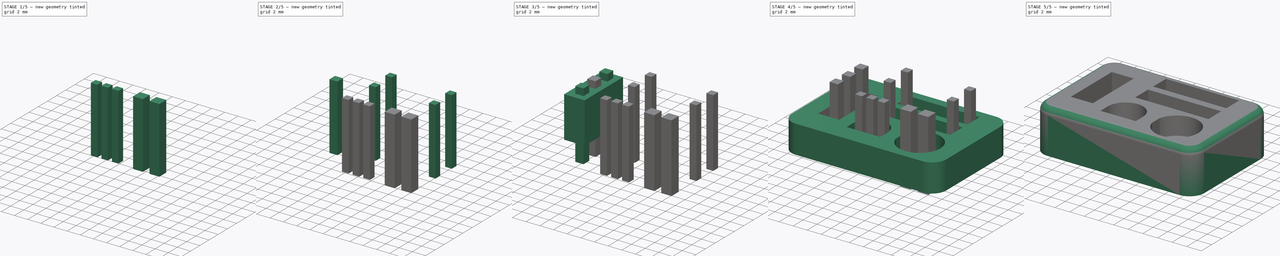
[diagram: build sequence overview — one tinted view per stage of 5, left to right]
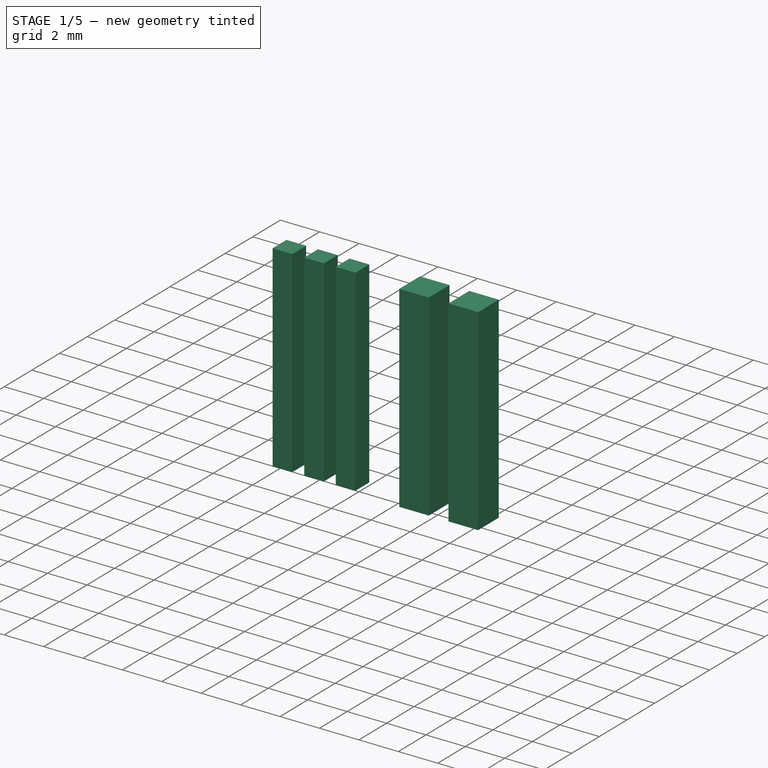
[diagram: stage 1 of 5 — iso view after this stage's code; geometry added in this stage tinted green]
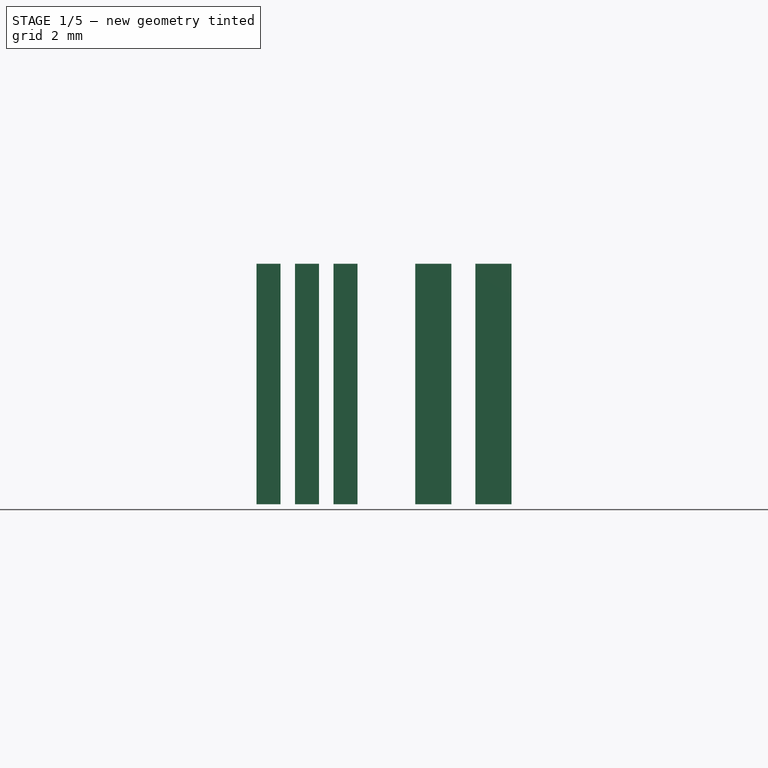
[diagram: stage 1 of 5 — front view after this stage's code; geometry added in this stage tinted green]
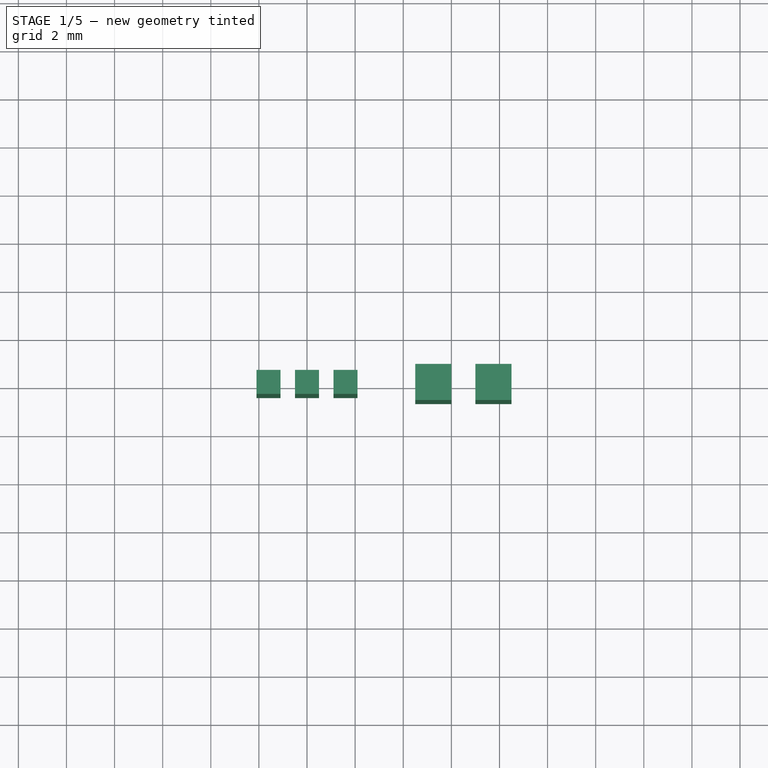
[diagram: stage 1 of 5 — top view after this stage's code; geometry added in this stage tinted green]
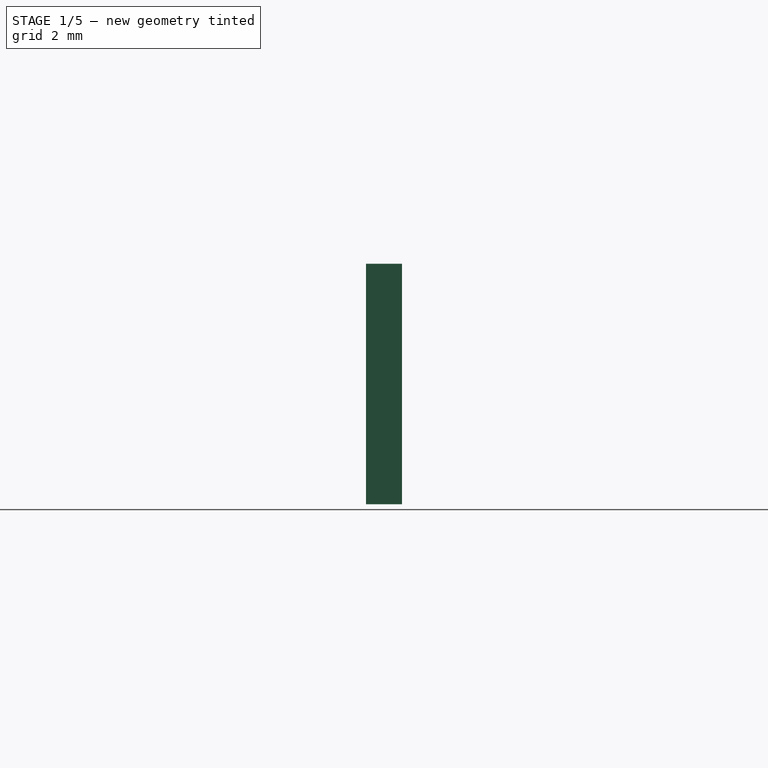
[diagram: stage 1 of 5 — right view after this stage's code; geometry added in this stage tinted green]
FCSTD DOCUMENT  (FreeCAD 0.18R16131 (Git))
Label: PCBPrint_Led_5mm_Transistor_EBC
License: Public Domain
LicenseURL: http://en.wikipedia.org/wiki/Public_domain
objects: Part::Feature×21, Part::Box×13, App::DocumentObjectGroup×7, Sketcher::SketchObject×5, PartDesign::Pad×3, PartDesign::Body×3, Part::Cut×3, App::Part×3, PartDesign::Pocket×2, Part::MultiFuse×2, Part::Fillet×1
note: 58 computed .brp shape members not serialized (recipe doc carries the construction recipe); baked Part::Feature solids carry a one-line shape summary decoded from their .brp

FEATURE [Part::Box] Box013  label="Cubo013"
  AttacherType = Attacher::AttachEngine3D
  Height = 10
  Length = 1.5
  Placement = pos=(14.5,3.35,0) rot=(0,0,1;0rad)
  Width = 1.5
FEATURE [Part::Box] Box014  label="Cubo014"
  AttacherType = Attacher::AttachEngine3D
  Height = 10
  Length = 1.5
  Placement = pos=(17,3.35,0) rot=(0,0,1;0rad)
  Width = 1.5
FEATURE [Part::Box] Box015  label="Cubo015"
  AttacherType = Attacher::AttachEngine3D
  Height = 10
  Length = 1
  Placement = pos=(9.5,3.6,0) rot=(0,0,1;0rad)
  Width = 1
FEATURE [Part::Box] Box016  label="Cubo016"
  AttacherType = Attacher::AttachEngine3D
  Height = 10
  Length = 1
  Placement = pos=(7.9,3.6,0) rot=(0,0,1;0rad)
  Width = 1
FEATURE [Part::Box] Box017  label="Cubo017"
  AttacherType = Attacher::AttachEngine3D
  Height = 10
  Length = 1
  Placement = pos=(11.1,3.6,0) rot=(0,0,1;0rad)
  Width = 1
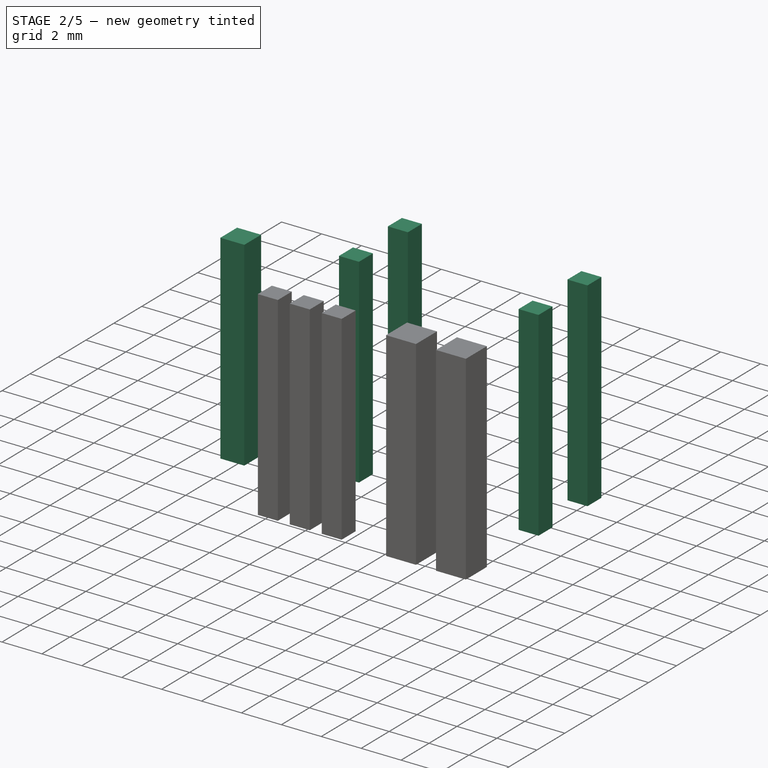
[diagram: stage 2 of 5 — iso view after this stage's code; geometry added in this stage tinted green]
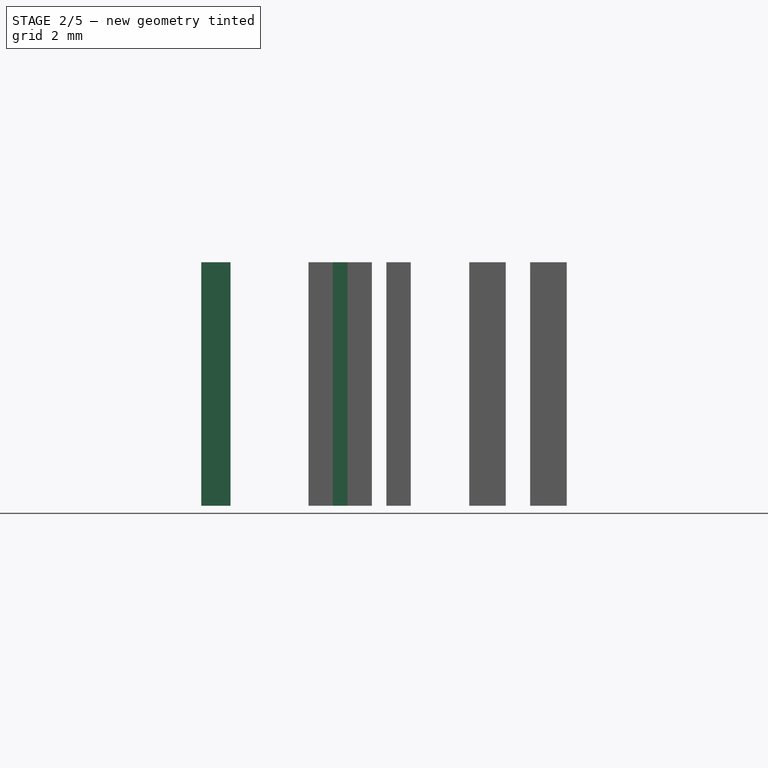
[diagram: stage 2 of 5 — front view after this stage's code; geometry added in this stage tinted green]
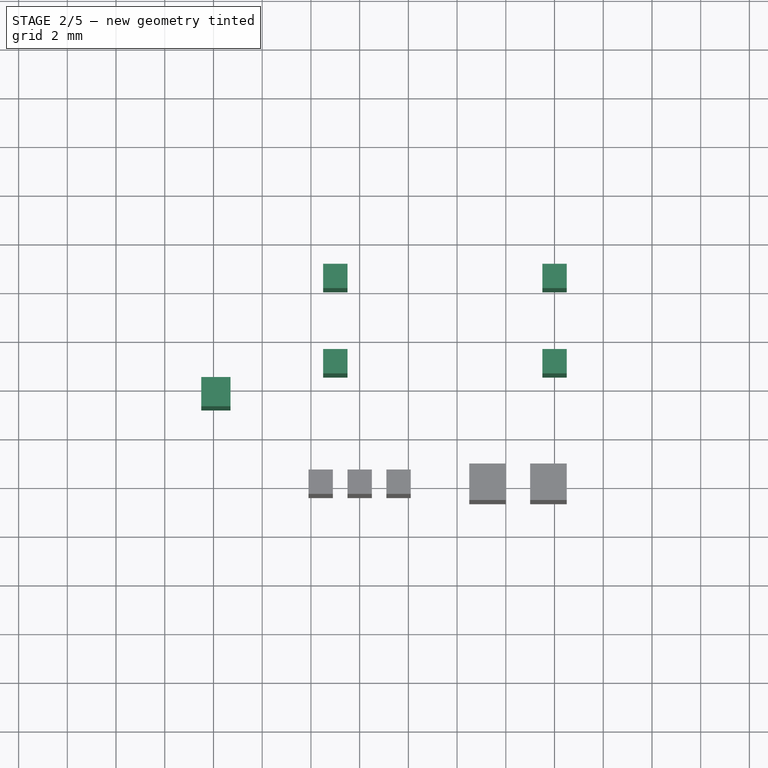
[diagram: stage 2 of 5 — top view after this stage's code; geometry added in this stage tinted green]
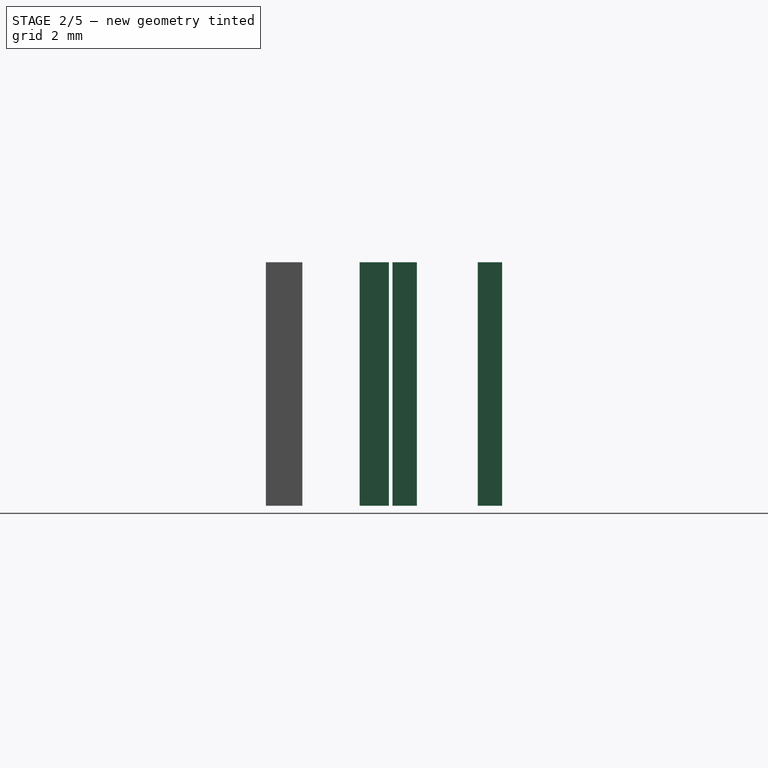
[diagram: stage 2 of 5 — right view after this stage's code; geometry added in this stage tinted green]
FEATURE [Part::Box] Box006  label="Cubo006"
  AttacherType = Attacher::AttachEngine3D
  Height = 10
  Length = 1.2
  Placement = pos=(3.5,7.2,0) rot=(0,0,1;0rad)
  Width = 1.2
FEATURE [Part::Box] Box007  label="Cubo007"
  AttacherType = Attacher::AttachEngine3D
  Height = 10
  Length = 1
  Placement = pos=(17.5,8.55,0) rot=(0,0,1;0rad)
  Width = 1
FEATURE [Part::Box] Box008  label="Cubo008"
  AttacherType = Attacher::AttachEngine3D
  Height = 10
  Length = 1
  Placement = pos=(8.5,8.55,0) rot=(0,0,1;0rad)
  Width = 1
FEATURE [Part::Box] Box009  label="Cubo009"
  AttacherType = Attacher::AttachEngine3D
  Height = 10
  Length = 1
  Placement = pos=(17.5,12.05,0) rot=(0,0,1;0rad)
  Width = 1
FEATURE [Part::Box] Box010  label="Cubo010"
  AttacherType = Attacher::AttachEngine3D
  Height = 10
  Length = 1
  Placement = pos=(8.5,12.05,0) rot=(0,0,1;0rad)
  Width = 1
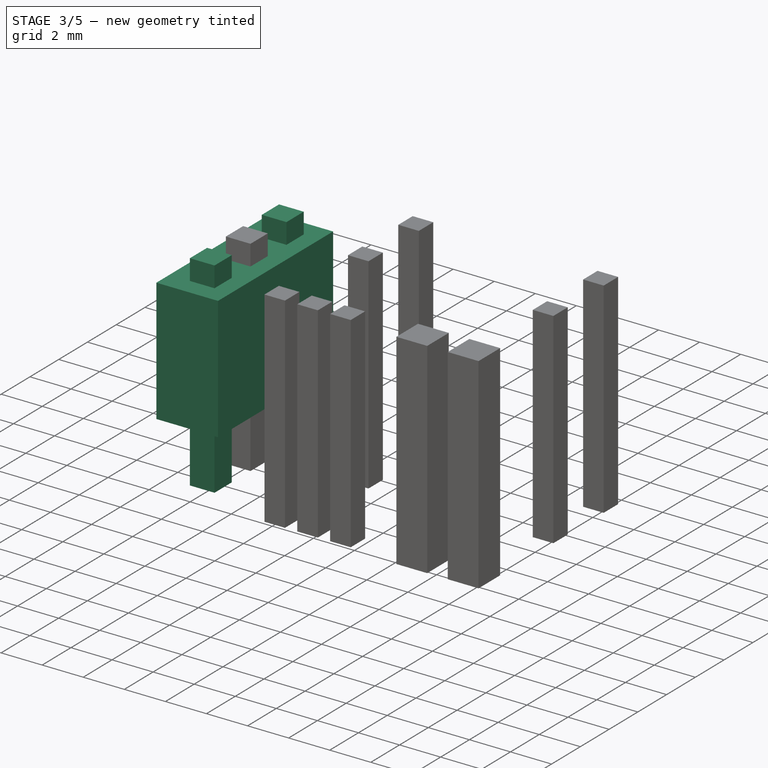
[diagram: stage 3 of 5 — iso view after this stage's code; geometry added in this stage tinted green]
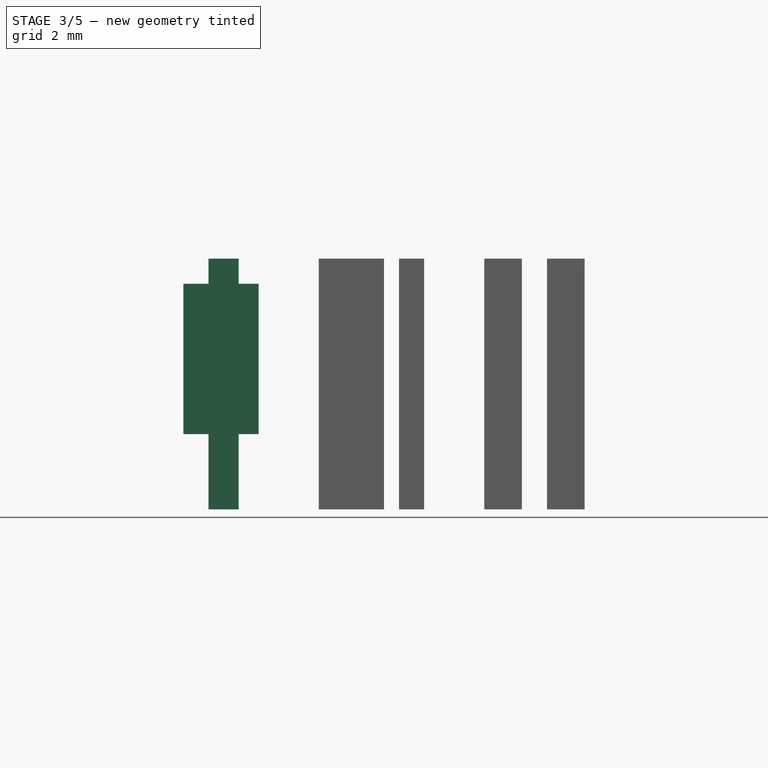
[diagram: stage 3 of 5 — front view after this stage's code; geometry added in this stage tinted green]
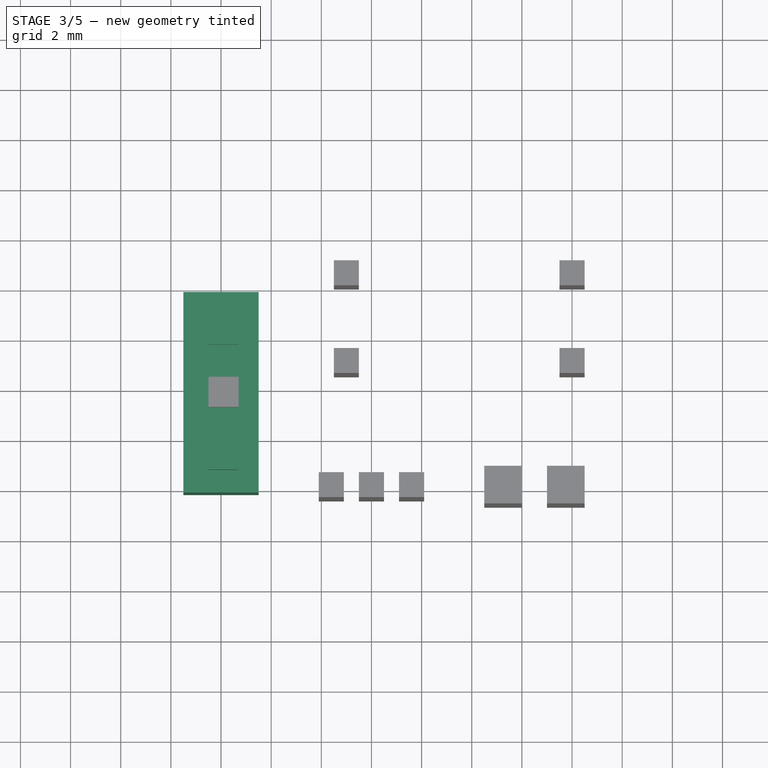
[diagram: stage 3 of 5 — top view after this stage's code; geometry added in this stage tinted green]
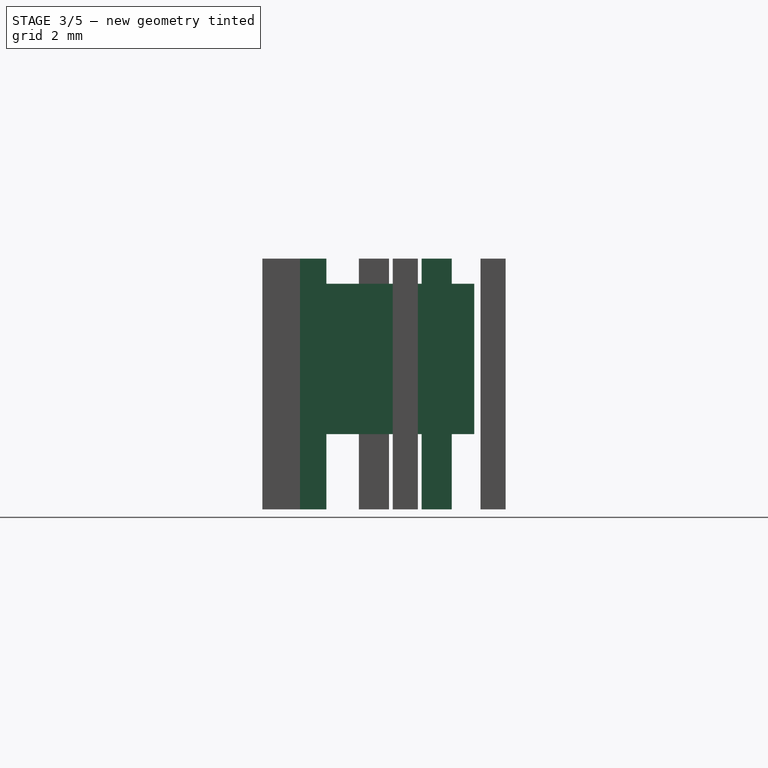
[diagram: stage 3 of 5 — right view after this stage's code; geometry added in this stage tinted green]
FEATURE [Part::Box] Box004  label="Cubo004"
  AttacherType = Attacher::AttachEngine3D
  Height = 10
  Length = 1.2
  Placement = pos=(3.5,4.7,0) rot=(0,0,1;0rad)
  Width = 1.2
FEATURE [Part::Box] Box005  label="Cubo005"
  AttacherType = Attacher::AttachEngine3D
  Height = 10
  Length = 1.2
  Placement = pos=(3.5,9.7,0) rot=(0,0,1;0rad)
  Width = 1.2
FEATURE [PartDesign::Body] Body002  label="superios"
  Group = -> [Sketch003,Pad002,Sketch004,Pocket001]
  Origin = -> Origin002
  Placement = pos=(0,0,3.5) rot=(0,0,1;0rad)
  Tip = -> Pocket001
FEATURE [Part::Box] Box  label="Cubo"
  AttacherType = Attacher::AttachEngine3D
  Height = 6
  Length = 3
  Placement = pos=(2.5,3.8,3) rot=(0,0,1;0rad)
  Width = 8
FEATURE [Part::MultiFuse] Fusion001  label="taladros"
  Refine = true
  Shapes = -> [Box017,Box016,Box015,Box014,Box013,Box010,Box009,Box008,Box007,Box006,Box005,Box004]
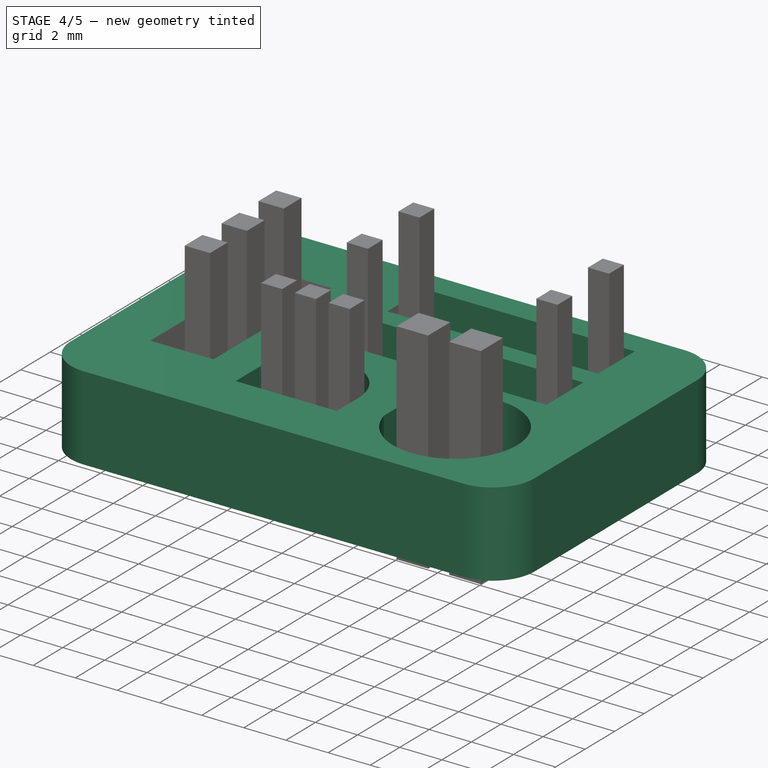
[diagram: stage 4 of 5 — iso view after this stage's code; geometry added in this stage tinted green]
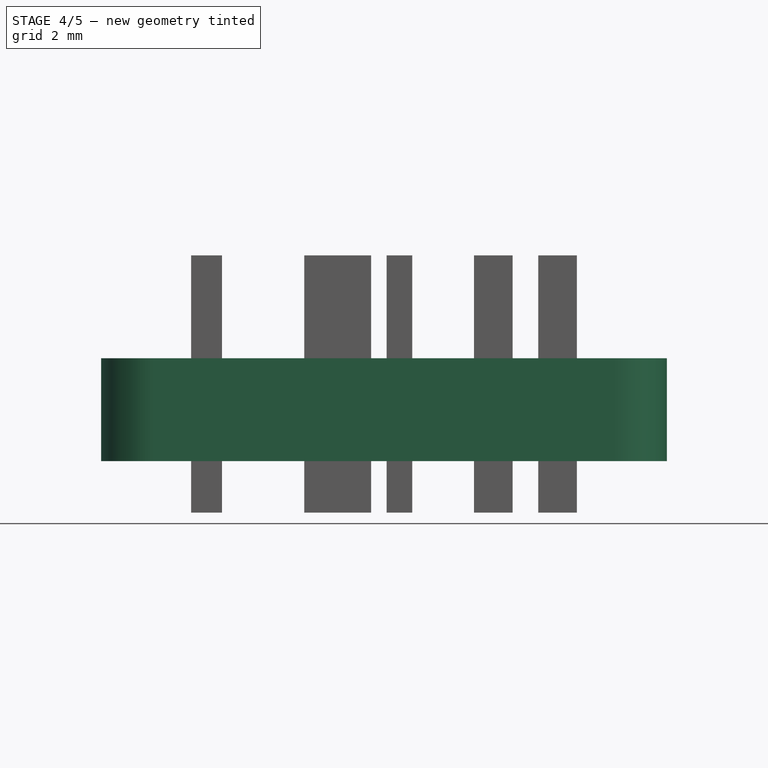
[diagram: stage 4 of 5 — front view after this stage's code; geometry added in this stage tinted green]
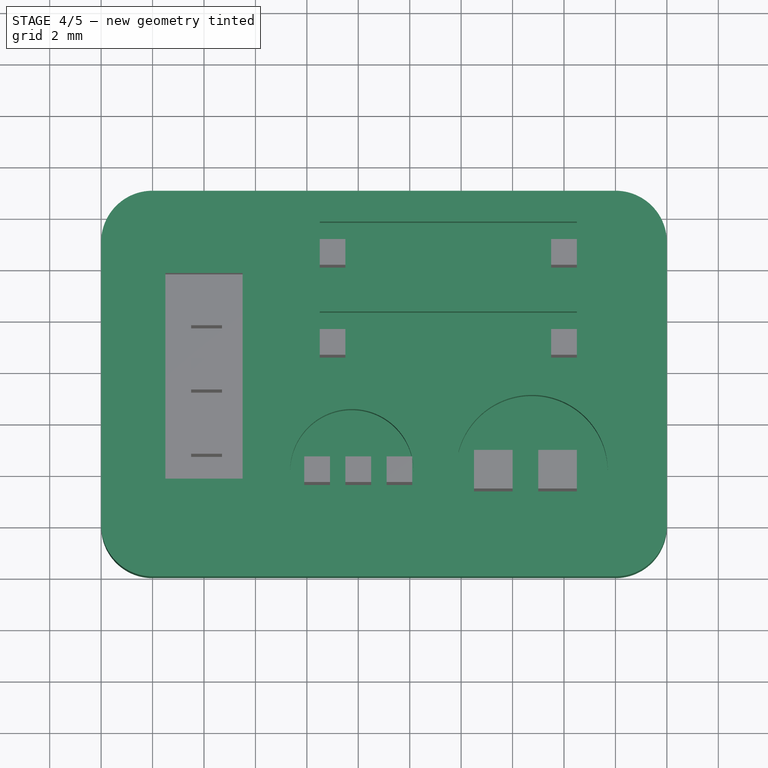
[diagram: stage 4 of 5 — top view after this stage's code; geometry added in this stage tinted green]
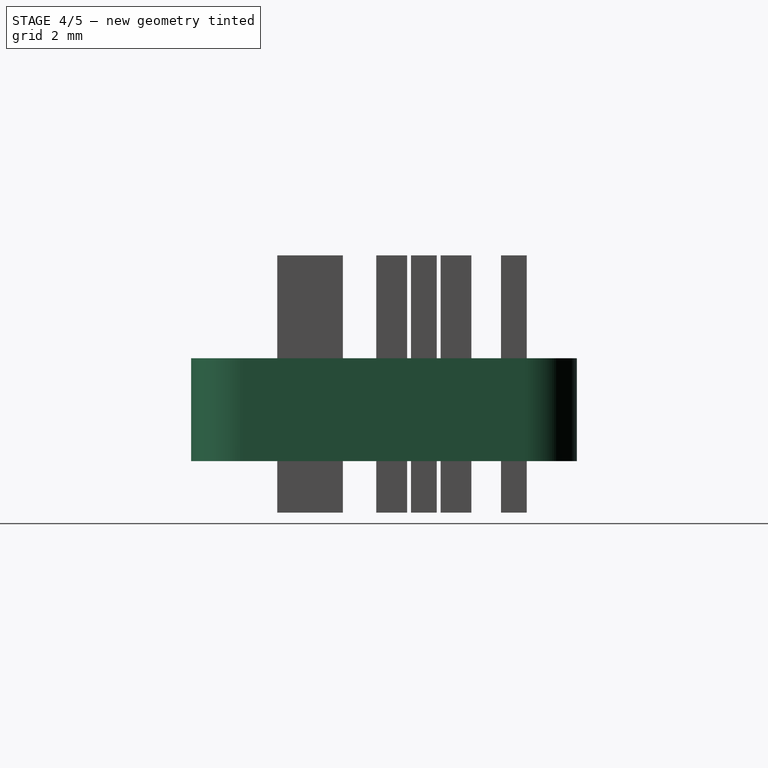
[diagram: stage 4 of 5 — right view after this stage's code; geometry added in this stage tinted green]
FEATURE [PartDesign::Body] Body  label="inferior pistas"
  Group = -> [Sketch,Pad,Sketch001,Pocket]
  Origin = -> Origin
  Tip = -> Pocket
FEATURE [Sketcher::SketchObject] Sketch002  label="PCB-base-sketch001"
  MapMode = 5
  sketch-geometry (12):
    g0: LineSegment [constr] StartX=0 StartY=0 StartZ=0 EndX=22 EndY=0 EndZ=0
    g1: LineSegment [constr] StartX=22 StartY=0 StartZ=0 EndX=22 EndY=15 EndZ=0
    g2: LineSegment [constr] StartX=22 StartY=15 StartZ=0 EndX=0 EndY=15 EndZ=0
    g3: LineSegment [constr] StartX=0 StartY=15 StartZ=0 EndX=0 EndY=0 EndZ=0
    g4: LineSegment StartX=2 StartY=15 StartZ=0 EndX=20 EndY=15 EndZ=0
    g5: LineSegment StartX=22 StartY=13 StartZ=0 EndX=22 EndY=2 EndZ=0
    g6: LineSegment StartX=20 StartY=0 StartZ=0 EndX=2 EndY=0 EndZ=0
    g7: LineSegment StartX=0 StartY=2 StartZ=0 EndX=0 EndY=13 EndZ=0
    g8: ArcOfCircle CenterX=2 CenterY=13 CenterZ=0 NormalX=0 NormalY=0 NormalZ=1 AngleXU=0 Radius=2 StartAngle=1.5708 EndAngle=3.14159
    g9: ArcOfCircle CenterX=2 CenterY=2 CenterZ=0 NormalX=0 NormalY=0 NormalZ=1 AngleXU=0 Radius=2 StartAngle=3.14159 EndAngle=4.71239
    g10: ArcOfCircle CenterX=20 CenterY=2 CenterZ=0 NormalX=0 NormalY=0 NormalZ=1 AngleXU=0 Radius=2 StartAngle=4.71239 EndAngle=6.28319
    g11: ArcOfCircle CenterX=20 CenterY=13 CenterZ=0 NormalX=0 NormalY=0 NormalZ=1 AngleXU=0 Radius=2 StartAngle=1.035e-13 EndAngle=1.5708
  constraints (31):
    c: Coincident(g0,g1)
    c: Coincident(g1,g2)
    c: Coincident(g2,g3)
    c: Coincident(g3,g0)
    c: Horizontal(g0)
    c: Horizontal(g2)
    c: Vertical(g1)
    c: Vertical(g3)
    c: Coincident(g0,g-1)
    c: DistanceX(g0,g0) = 22
    c: DistanceY(g1,g1) = 15
    c: Horizontal(g4)
    c: Horizontal(g6)
    c: Vertical(g5)
    c: Vertical(g7)
    c: Tangent(g4,g8) = 1.5708
    c: Tangent(g7,g8) = 1.5708
    c: Tangent(g6,g9) = 1.5708
    c: Tangent(g7,g9) = 1.5708
    c: Tangent(g5,g10) = 1.5708
    c: Tangent(g6,g10) = 1.5708
    c: Tangent(g4,g11) = 1.5708
    c: Tangent(g5,g11) = 1.5708
    c: Equal(g8,g11)
    c: Equal(g11,g10)
    c: Equal(g10,g9)
    c: Radius(g8) = 2
    c: PointOnObject(g7,g3)
    c: PointOnObject(g4,g2)
    c: PointOnObject(g6,g0)
    c: PointOnObject(g5,g1)
FEATURE [PartDesign::Pad] Pad001
  Length = 1.5
  Length2 = 100
  Profile = -> Sketch002
  Refine = true
  Type = 0
FEATURE [PartDesign::Body] Body001  label="intermedio"
  Group = -> [Sketch002,Pad001]
  Origin = -> Origin001
  Placement = pos=(0,0,2) rot=(0,0,1;0rad)
  Tip = -> Pad001
FEATURE [Sketcher::SketchObject] Sketch003  label="base"
  MapMode = 5
  sketch-geometry (12):
    g0: LineSegment [constr] StartX=0 StartY=0 StartZ=0 EndX=22 EndY=0 EndZ=0
    g1: LineSegment [constr] StartX=22 StartY=0 StartZ=0 EndX=22 EndY=15 EndZ=0
    g2: LineSegment [constr] StartX=22 StartY=15 StartZ=0 EndX=0 EndY=15 EndZ=0
    g3: LineSegment [constr] StartX=0 StartY=15 StartZ=0 EndX=0 EndY=0 EndZ=0
    g4: LineSegment StartX=2 StartY=15 StartZ=0 EndX=20 EndY=15 EndZ=0
    g5: LineSegment StartX=22 StartY=13 StartZ=0 EndX=22 EndY=2 EndZ=0
    g6: LineSegment StartX=20 StartY=0 StartZ=0 EndX=2 EndY=0 EndZ=0
    g7: LineSegment StartX=0 StartY=2 StartZ=0 EndX=0 EndY=13 EndZ=0
    g8: ArcOfCircle CenterX=2 CenterY=13 CenterZ=0 NormalX=0 NormalY=0 NormalZ=1 AngleXU=0 Radius=2 StartAngle=1.5708 EndAngle=3.14159
    g9: ArcOfCircle CenterX=2 CenterY=2 CenterZ=0 NormalX=0 NormalY=0 NormalZ=1 AngleXU=0 Radius=2 StartAngle=3.14159 EndAngle=4.71239
    g10: ArcOfCircle CenterX=20 CenterY=2 CenterZ=0 NormalX=0 NormalY=0 NormalZ=1 AngleXU=0 Radius=2 StartAngle=4.71239 EndAngle=6.28319
    g11: ArcOfCircle CenterX=20 CenterY=13 CenterZ=0 NormalX=0 NormalY=0 NormalZ=1 AngleXU=0 Radius=2 StartAngle=1.035e-13 EndAngle=1.5708
  constraints (31):
    c: Coincident(g0,g1)
    c: Coincident(g1,g2)
    c: Coincident(g2,g3)
    c: Coincident(g3,g0)
    c: Horizontal(g0)
    c: Horizontal(g2)
    c: Vertical(g1)
    c: Vertical(g3)
    c: Coincident(g0,g-1)
    c: DistanceX(g0,g0) = 22
    c: DistanceY(g1,g1) = 15
    c: Horizontal(g4)
    c: Horizontal(g6)
    c: Vertical(g5)
    c: Vertical(g7)
    c: Tangent(g4,g8) = 1.5708
    c: Tangent(g7,g8) = 1.5708
    c: Tangent(g6,g9) = 1.5708
    c: Tangent(g7,g9) = 1.5708
    c: Tangent(g5,g10) = 1.5708
    c: Tangent(g6,g10) = 1.5708
    c: Tangent(g4,g11) = 1.5708
    c: Tangent(g5,g11) = 1.5708
    c: Equal(g8,g11)
    c: Equal(g11,g10)
    c: Equal(g10,g9)
    c: Radius(g8) = 2
    c: PointOnObject(g7,g3)
    c: PointOnObject(g4,g2)
    c: PointOnObject(g6,g0)
    c: PointOnObject(g5,g1)
FEATURE [PartDesign::Pad] Pad002
  Length = 2.5
  Length2 = 100
  Profile = -> Sketch003
  Refine = true
  Type = 0
FEATURE [Sketcher::SketchObject] Sketch004  label="superios001"
  ExternalGeometry = -> [Pad002]
  MapMode = 5
  Placement = pos=(0,0,2.5) rot=(0,0,1;0rad)
  Support = -> [Pad002]
  sketch-geometry (19):
    g0: LineSegment StartX=8.5 StartY=13.8 StartZ=0 EndX=18.5 EndY=13.8 EndZ=0
    g1: LineSegment StartX=18.5 StartY=13.8 StartZ=0 EndX=18.5 EndY=11.3 EndZ=0
    g2: LineSegment StartX=18.5 StartY=11.3 StartZ=0 EndX=8.5 EndY=11.3 EndZ=0
    g3: LineSegment StartX=8.5 StartY=11.3 StartZ=0 EndX=8.5 EndY=13.8 EndZ=0
    g4: LineSegment StartX=8.5 StartY=10.3 StartZ=0 EndX=18.5 EndY=10.3 EndZ=0
    g5: LineSegment StartX=18.5 StartY=10.3 StartZ=0 EndX=18.5 EndY=7.8 EndZ=0
    g6: LineSegment StartX=18.5 StartY=7.8 StartZ=0 EndX=8.5 EndY=7.8 EndZ=0
    g7: LineSegment StartX=8.5 StartY=7.8 StartZ=0 EndX=8.5 EndY=10.3 EndZ=0
    g8: ArcOfCircle CenterX=9.75 CenterY=4.10732 CenterZ=0 NormalX=0 NormalY=0 NormalZ=1 AngleXU=0 Radius=2.4 StartAngle=1e-16 EndAngle=3.14159
    g9: LineSegment [constr] StartX=9.75 StartY=1.2 StartZ=0 EndX=16.25 EndY=1.2 EndZ=0
    g10: LineSegment [constr] StartX=9.75 StartY=6.50732 StartZ=0 EndX=9.75 EndY=2.65732 EndZ=0
    g11: LineSegment [constr] StartX=9.75 StartY=4.10732 StartZ=0 EndX=16.75 EndY=4.10732 EndZ=0
    g12: LineSegment [constr] StartX=8.5 StartY=11.3 StartZ=0 EndX=8.5 EndY=10.3 EndZ=0
    g13: LineSegment StartX=7.35 StartY=2.65732 StartZ=0 EndX=12.15 EndY=2.65732 EndZ=0
    g14: LineSegment [constr] StartX=9.75 StartY=2.65732 StartZ=0 EndX=9.75 EndY=1.2 EndZ=0
    g15: LineSegment StartX=13.8969 StartY=4.85732 StartZ=0 EndX=13.8969 EndY=3.35732 EndZ=0
    g16: ArcOfCircle CenterX=16.75 CenterY=4.10732 CenterZ=0 NormalX=0 NormalY=0 NormalZ=1 AngleXU=0 Radius=2.95 StartAngle=3.39865 EndAngle=9.16772
    g17: LineSegment StartX=12.15 StartY=4.10732 StartZ=0 EndX=12.15 EndY=2.65732 EndZ=0
    g18: LineSegment StartX=7.35 StartY=4.10732 StartZ=0 EndX=7.35 EndY=2.65732 EndZ=0
  constraints (56):
    c: Coincident(g0,g1)
    c: Coincident(g2,g3)
    c: Coincident(g3,g0)
    c: Horizontal(g0)
    c: Horizontal(g2)
    c: Vertical(g1)
    c: Vertical(g3)
    c: DistanceY(g1,g1) = 2.5
    c: DistanceX(g0,g0) = 10
    c: DistanceY(g0,g-3) = 1.2
    c: Coincident(g4,g5)
    c: Coincident(g5,g6)
    c: Coincident(g6,g7)
    c: Coincident(g7,g4)
    c: Horizontal(g4)
    c: Horizontal(g6)
    c: Vertical(g5)
    c: Vertical(g7)
    c: Equal(g5,g1)
    c: Equal(g0,g4)
    c: Radius(g8) = 2.4
    c: DistanceY(g4,g1) = 1
    c: DistanceX(g-1,g2) = 8.5
    c: Coincident(g1,g2)
    c: Horizontal(g9)
    c: DistanceY(g-5,g9) = 1.2
    c: Vertical(g10)
    c: DistanceY(g10,g10) = 3.85
    c: PointOnObject(g10,g8)
    c: Coincident(g11,g8)
    c: Horizontal(g11)
    c: PointOnObject(g8,g10)
    c: Coincident(g12,g2)
    c: Vertical(g12)
    c: Coincident(g4,g12)
    c: Horizontal(g13)
    c: PointOnObject(g10,g13)
    c: Coincident(g14,g10)
    c: Coincident(g14,g9)
    c: Vertical(g14)
    c: Vertical(g15)
    c: Coincident(g16,g11)
    c: Coincident(g16,g15)
    c: PointOnObject(g9,g16)
    c: Radius(g16) = 2.95
    c: DistanceX(g9,g9) = 6.5
    c: DistanceX(g11,g11) = 7
    c: DistanceX(g9,g-5) = 3.75
    c: Coincident(g15,g16)
    c: DistanceY(g15,g15) = 1.5
    c: Vertical(g17)
    c: Vertical(g18)
    c: Coincident(g13,g18)
    c: Coincident(g13,g17)
    c: Tangent(g8,g18) = -1.5708
    c: Tangent(g8,g17) = 1.5708
FEATURE [PartDesign::Pocket] Pocket001
  BaseFeature = -> Pad002
  Length = 5
  Length2 = 100
  Profile = -> Sketch004
  Refine = true
  Type = 1
FEATURE [Part::Cut] Cut  label="superior corte conector"
  Base = -> Body002
  Refine = true
  Tool = -> Box
FEATURE [Part::Cut] Cut001  label="intermedio corte conector"
  Base = -> Body001
  Refine = true
  Tool = -> Box
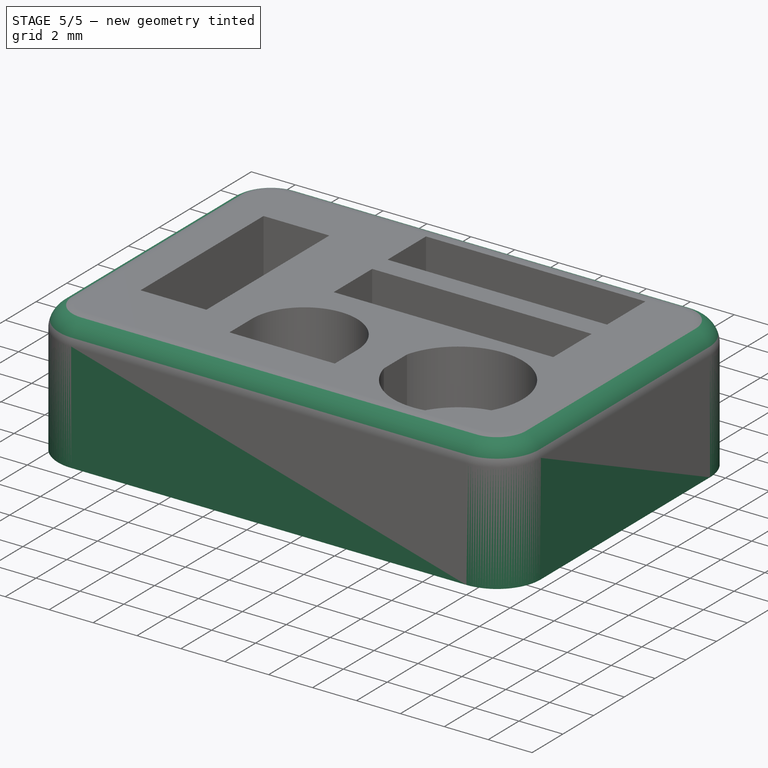
[diagram: stage 5 of 5 — iso view after this stage's code; geometry added in this stage tinted green]
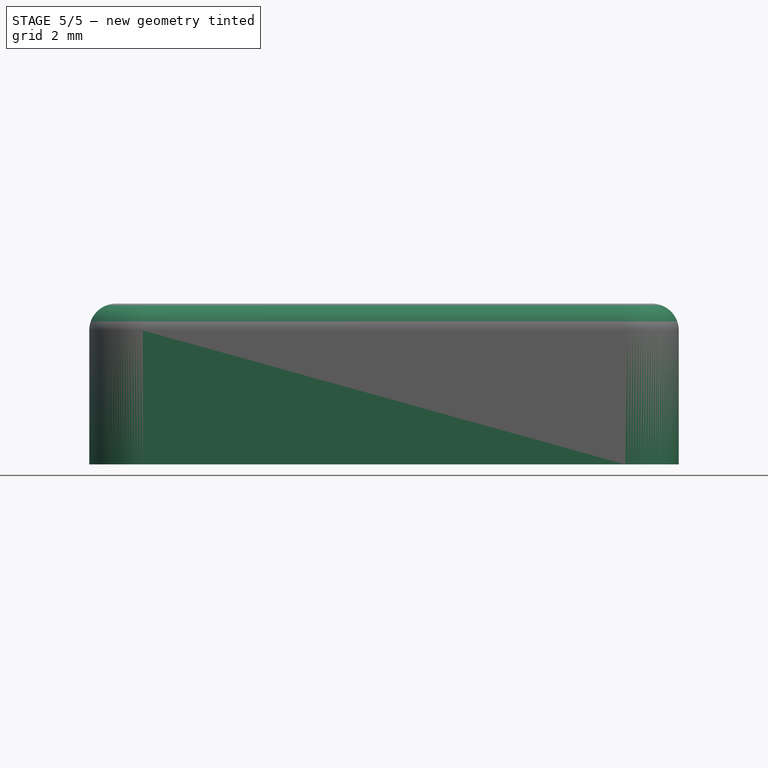
[diagram: stage 5 of 5 — front view after this stage's code; geometry added in this stage tinted green]
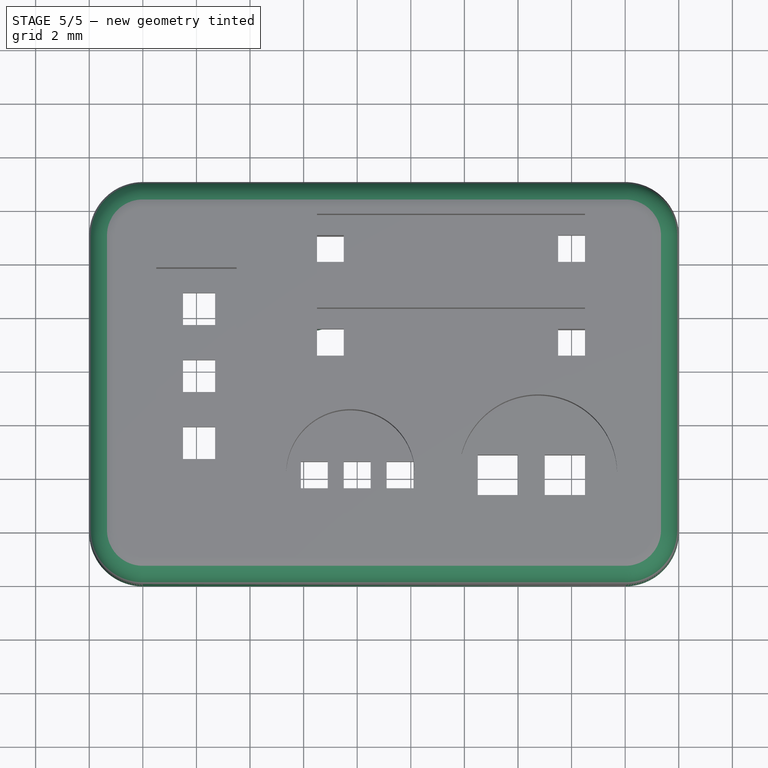
[diagram: stage 5 of 5 — top view after this stage's code; geometry added in this stage tinted green]
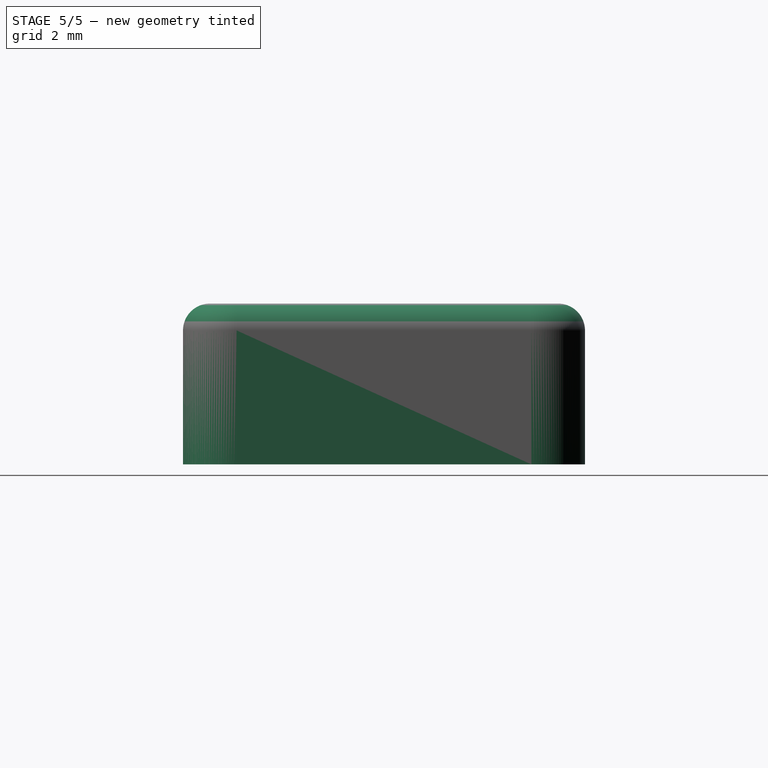
[diagram: stage 5 of 5 — right view after this stage's code; geometry added in this stage tinted green]
FEATURE [Sketcher::SketchObject] Sketch  label="PCB-base-sketch"
  MapMode = 5
  sketch-geometry (12):
    g0: LineSegment [constr] StartX=0 StartY=0 StartZ=0 EndX=22 EndY=0 EndZ=0
    g1: LineSegment [constr] StartX=22 StartY=0 StartZ=0 EndX=22 EndY=15 EndZ=0
    g2: LineSegment [constr] StartX=22 StartY=15 StartZ=0 EndX=0 EndY=15 EndZ=0
    g3: LineSegment [constr] StartX=0 StartY=15 StartZ=0 EndX=0 EndY=0 EndZ=0
    g4: LineSegment StartX=2 StartY=15 StartZ=0 EndX=20 EndY=15 EndZ=0
    g5: LineSegment StartX=22 StartY=13 StartZ=0 EndX=22 EndY=2 EndZ=0
    g6: LineSegment StartX=20 StartY=0 StartZ=0 EndX=2 EndY=0 EndZ=0
    g7: LineSegment StartX=0 StartY=2 StartZ=0 EndX=0 EndY=13 EndZ=0
    g8: ArcOfCircle CenterX=2 CenterY=13 CenterZ=0 NormalX=0 NormalY=0 NormalZ=1 AngleXU=0 Radius=2 StartAngle=1.5708 EndAngle=3.14159
    g9: ArcOfCircle CenterX=2 CenterY=2 CenterZ=0 NormalX=0 NormalY=0 NormalZ=1 AngleXU=0 Radius=2 StartAngle=3.14159 EndAngle=4.71239
    g10: ArcOfCircle CenterX=20 CenterY=2 CenterZ=0 NormalX=0 NormalY=0 NormalZ=1 AngleXU=0 Radius=2 StartAngle=4.71239 EndAngle=6.28319
    g11: ArcOfCircle CenterX=20 CenterY=13 CenterZ=0 NormalX=0 NormalY=0 NormalZ=1 AngleXU=0 Radius=2 StartAngle=1.035e-13 EndAngle=1.5708
  constraints (31):
    c: Coincident(g0,g1)
    c: Coincident(g1,g2)
    c: Coincident(g2,g3)
    c: Coincident(g3,g0)
    c: Horizontal(g0)
    c: Horizontal(g2)
    c: Vertical(g1)
    c: Vertical(g3)
    c: Coincident(g0,g-1)
    c: DistanceX(g0,g0) = 22
    c: DistanceY(g1,g1) = 15
    c: Horizontal(g4)
    c: Horizontal(g6)
    c: Vertical(g5)
    c: Vertical(g7)
    c: Tangent(g4,g8) = 1.5708
    c: Tangent(g7,g8) = 1.5708
    c: Tangent(g6,g9) = 1.5708
    c: Tangent(g7,g9) = 1.5708
    c: Tangent(g5,g10) = 1.5708
    c: Tangent(g6,g10) = 1.5708
    c: Tangent(g4,g11) = 1.5708
    c: Tangent(g5,g11) = 1.5708
    c: Equal(g8,g11)
    c: Equal(g11,g10)
    c: Equal(g10,g9)
    c: Radius(g8) = 2
    c: PointOnObject(g7,g3)
    c: PointOnObject(g4,g2)
    c: PointOnObject(g6,g0)
    c: PointOnObject(g5,g1)
FEATURE [PartDesign::Pad] Pad
  Length = 2
  Length2 = 100
  Profile = -> Sketch
  Refine = true
  Type = 0
FEATURE [Part::Feature] Clone002001  label="Insulators001"
  Placement = pos=(2.8,5.27,2) rot=(0,1,0;1.5708rad)
  shape: bbox 2.5 x 7.62 x 2.54 mm, 42 faces, 3 solids (baked)
FEATURE [Part::Feature] Clone001001  label="pins001"
  Placement = pos=(2.8,10.27,9.2) rot=(0.707107,0,0.707107;3.14159rad)
  shape: bbox 4.57 x 5.72 x 10.36 mm, 54 faces, 3 solids (baked)
FEATURE [App::DocumentObjectGroup] Group002  label="conector"
  Group = -> [Clone001001,Clone002001]
FEATURE [Sketcher::SketchObject] Sketch001
  ExternalGeometry = -> [Pad]
  MapMode = 5
  Placement = pos=(0,0,2) rot=(0,0,1;0rad)
  Support = -> [Pad]
  sketch-geometry (47):
    g0: LineSegment [constr] StartX=8.5 StartY=13.8 StartZ=0 EndX=18.5 EndY=13.8 EndZ=0
    g1: LineSegment [constr] StartX=18.5 StartY=13.8 StartZ=0 EndX=18.5 EndY=11.3 EndZ=0
    g2: LineSegment [constr] StartX=18.5 StartY=11.3 StartZ=0 EndX=8.5 EndY=11.3 EndZ=0
    g3: LineSegment [constr] StartX=8.5 StartY=11.3 StartZ=0 EndX=8.5 EndY=13.8 EndZ=0
    g4: Circle [constr] CenterX=16.5347 CenterY=4.1 CenterZ=0 NormalX=0 NormalY=0 NormalZ=1 AngleXU=0 Radius=2.9
    g5: LineSegment [constr] StartX=8.5 StartY=10.3 StartZ=0 EndX=18.5 EndY=10.3 EndZ=0
    g6: LineSegment [constr] StartX=18.5 StartY=10.3 StartZ=0 EndX=18.5 EndY=7.8 EndZ=0
    g7: LineSegment [constr] StartX=18.5 StartY=7.8 StartZ=0 EndX=8.5 EndY=7.8 EndZ=0
    g8: LineSegment [constr] StartX=8.5 StartY=7.8 StartZ=0 EndX=8.5 EndY=10.3 EndZ=0
    g9: Circle [constr] CenterX=10.0347 CenterY=4.1 CenterZ=0 NormalX=0 NormalY=0 NormalZ=1 AngleXU=0 Radius=2.25
    g10: LineSegment [constr] StartX=8.5 StartY=11.3 StartZ=0 EndX=8.5 EndY=10.3 EndZ=0
    g11: LineSegment StartX=4.82399 StartY=5.25109 StartZ=0 EndX=9.5453 EndY=5.25109 EndZ=0
    g12: LineSegment StartX=18.5 StartY=3.28466 StartZ=0 EndX=3.3539 EndY=3.28466 EndZ=0
    g13: LineSegment [constr] StartX=9.77495 StartY=1.2 StartZ=0 EndX=19.8896 EndY=1.2 EndZ=0
    g14: LineSegment StartX=3.3539 StartY=11.8826 StartZ=0 EndX=3.3539 EndY=9.3503 EndZ=0
    g15: LineSegment StartX=3.3539 StartY=9.3503 StartZ=0 EndX=4.84898 EndY=9.3503 EndZ=0
    g16: LineSegment StartX=4.84898 StartY=9.3503 StartZ=0 EndX=4.84898 EndY=11.0173 EndZ=0
    g17: LineSegment StartX=5.55253 StartY=11.8407 StartZ=0 EndX=9.77144 EndY=11.8407 EndZ=0
    g18: LineSegment StartX=9.77144 StartY=11.8407 StartZ=0 EndX=9.77349 EndY=13.0407 EndZ=0
    g19: LineSegment StartX=18.5 StartY=12.0285 StartZ=0 EndX=18.5 EndY=13.3285 EndZ=0
    g20: LineSegment StartX=10.8259 StartY=5.25109 StartZ=0 EndX=17.1049 EndY=5.25109 EndZ=0
    g21: LineSegment StartX=17.1049 StartY=5.25109 StartZ=0 EndX=17.1049 EndY=9.55801 EndZ=0
    g22: LineSegment StartX=17.1049 StartY=9.55801 StartZ=0 EndX=18.5 EndY=9.55801 EndZ=0
    g23: LineSegment StartX=18.5 StartY=9.55801 StartZ=0 EndX=18.5 EndY=3.28466 EndZ=0
    g24: LineSegment StartX=3.3539 StartY=6.71478 StartZ=0 EndX=4.82399 EndY=6.71478 EndZ=0
    g25: LineSegment StartX=4.82399 StartY=6.71478 StartZ=0 EndX=9.70865 EndY=8.62181 EndZ=0
    g26: LineSegment StartX=9.70865 StartY=8.62181 StartZ=0 EndX=9.70865 EndY=9.82181 EndZ=0
    g27: LineSegment StartX=9.70865 StartY=9.82181 StartZ=0 EndX=4.84898 EndY=8.7003 EndZ=0
    g28: LineSegment StartX=4.84898 StartY=8.7003 StartZ=0 EndX=3.3539 EndY=8.7003 EndZ=0
    g29: LineSegment StartX=3.3539 StartY=8.7003 StartZ=0 EndX=3.3539 EndY=6.71478 EndZ=0
    g30: LineSegment StartX=4.82399 StartY=5.25109 StartZ=0 EndX=4.82399 EndY=6.06478 EndZ=0
    g31: LineSegment StartX=4.82399 StartY=6.06478 StartZ=0 EndX=3.3539 EndY=6.06478 EndZ=0
    g32: LineSegment StartX=3.3539 StartY=3.28466 StartZ=0 EndX=3.3539 EndY=6.06478 EndZ=0
    g33: LineSegment [constr] StartX=3.3539 StartY=9.3503 StartZ=0 EndX=3.3539 EndY=8.7003 EndZ=0
    g34: LineSegment [constr] StartX=3.3539 StartY=6.71478 StartZ=0 EndX=3.3539 EndY=6.06478 EndZ=0
    g35: LineSegment [constr] StartX=4.82399 StartY=6.71478 StartZ=0 EndX=4.82399 EndY=6.06478 EndZ=0
    g36: LineSegment StartX=18.5 StartY=13.3285 StartZ=0 EndX=17.0242 EndY=13.3285 EndZ=0
    g37: LineSegment StartX=9.5453 StartY=6.77278 StartZ=0 EndX=17.0242 EndY=13.3285 EndZ=0
    g38: LineSegment StartX=9.5453 StartY=5.25109 StartZ=0 EndX=9.5453 EndY=6.77278 EndZ=0
    g39: LineSegment StartX=10.8259 StartY=5.25109 StartZ=0 EndX=10.8259 EndY=6.27697 EndZ=0
    g40: LineSegment StartX=10.8259 StartY=6.27697 StartZ=0 EndX=17.3874 EndY=12.0285 EndZ=0
    g41: LineSegment StartX=17.3874 StartY=12.0285 StartZ=0 EndX=18.5 EndY=12.0285 EndZ=0
    g42: LineSegment [constr] StartX=10.0347 StartY=4.1 StartZ=0 EndX=16.5347 EndY=4.1 EndZ=0
    g43: LineSegment StartX=4.84898 StartY=11.0173 StartZ=0 EndX=5.55253 EndY=11.8407 EndZ=0
    g44: LineSegment StartX=3.3539 StartY=11.8826 StartZ=0 EndX=4.3435 EndY=13.0407 EndZ=0
    g45: LineSegment StartX=4.3435 StartY=13.0407 StartZ=0 EndX=9.77349 EndY=13.0407 EndZ=0
    g46: LineSegment [constr] StartX=4.84898 StartY=9.3503 StartZ=0 EndX=4.84898 EndY=8.7003 EndZ=0
  constraints (108):
    c: Coincident(g0,g1)
    c: Coincident(g2,g3)
    c: Coincident(g3,g0)
    c: Horizontal(g0)
    c: Horizontal(g2)
    c: Vertical(g1)
    c: Vertical(g3)
    c: DistanceY(g1,g1) = 2.5
    c: DistanceX(g0,g0) = 10
    c: DistanceY(g0,g-3) = 1.2
    c: Radius(g4) = 2.9
    c: Coincident(g5,g6)
    c: Coincident(g6,g7)
    c: Coincident(g7,g8)
    c: Coincident(g8,g5)
    c: Horizontal(g5)
    c: Horizontal(g7)
    c: Vertical(g6)
    c: Vertical(g8)
    c: Equal(g6,g1)
    c: Equal(g0,g5)
    c: Radius(g9) = 2.25
    c: DistanceY(g5,g1) = 1
    c: DistanceX(g-1,g2) = 8.5
    c: Coincident(g1,g2)
    c: Coincident(g10,g2)
    c: Coincident(g10,g5)
    c: Vertical(g10)
    c: Horizontal(g11)
    c: Horizontal(g12)
    c: Horizontal(g13)
    c: DistanceY(g-5,g13) = 1.2
    c: Tangent(g4,g13)
    c: DistanceX(g9,g4) = 6.5
    c: Vertical(g14)
    c: Coincident(g14,g15)
    c: Horizontal(g15)
    c: Coincident(g15,g16)
    c: Vertical(g16)
    c: Horizontal(g17)
    c: Coincident(g17,g18)
    c: DistanceY(g17,g18) = 1.2
    c: PointOnObject(g19,g1)
    c: PointOnObject(g19,g1)
    c: DistanceY(g19,g19) = 1.3
    c: Tangent(g11,g20)
    c: Coincident(g21,g22)
    c: Horizontal(g22)
    c: Vertical(g21)
    c: Coincident(g23,g22)
    c: Coincident(g23,g12)
    c: Vertical(g23)
    c: PointOnObject(g22,g6)
    c: Horizontal(g24)
    c: Coincident(g24,g25)
    c: Coincident(g25,g26)
    c: Vertical(g26)
    c: Coincident(g26,g27)
    c: Coincident(g27,g28)
    c: Coincident(g28,g29)
    c: Coincident(g29,g24)
    c: Vertical(g29)
    c: DistanceY(g27,g15) = 0.65
    c: DistanceY(g25,g26) = 1.2
    c: Vertical(g30)
    c: Coincident(g30,g31)
    c: Horizontal(g31)
    c: Coincident(g11,g30)
    c: Coincident(g32,g12)
    c: Coincident(g32,g31)
    c: Vertical(g32)
    c: Parallel(g24,g28)
    c: Coincident(g33,g14)
    c: Coincident(g33,g28)
    c: Coincident(g34,g24)
    c: Coincident(g34,g31)
    c: Vertical(g34)
    c: Vertical(g33)
    c: Coincident(g35,g24)
    c: Coincident(g35,g30)
    c: Vertical(g35)
    c: DistanceY(g35,g35) = 0.65
    c: Coincident(g36,g19)
    c: Horizontal(g36)
    c: Coincident(g37,g36)
    c: Vertical(g38)
    c: Coincident(g37,g38)
    c: Coincident(g38,g11)
    c: Coincident(g20,g39)
    c: Vertical(g39)
    c: Coincident(g39,g40)
    c: Coincident(g40,g41)
    c: Coincident(g41,g19)
    c: Horizontal(g41)
    c: Parallel(g40,g37)
    c: Coincident(g42,g9)
    c: Coincident(g42,g4)
    c: Horizontal(g42)
    c: Coincident(g17,g43)
    c: Coincident(g16,g43)
    c: Coincident(g14,g44)
    c: Coincident(g45,g44)
    c: Coincident(g45,g18)
    c: Horizontal(g45)
    c: Parallel(g44,g43)
    c: Coincident(g46,g15)
    c: Coincident(g46,g27)
    c: Vertical(g46)
FEATURE [PartDesign::Pocket] Pocket
  BaseFeature = -> Pad
  Length = 5
  Length2 = 100
  Profile = -> Sketch001
  Refine = true
  Type = 1
FEATURE [Part::MultiFuse] Fusion
  Refine = true
  Shapes = -> [Body,Cut,Cut001]
FEATURE [Part::Cut] Cut002  label="base con taladros"
  Base = -> Fusion
  Refine = true
  Tool = -> Fusion001
FEATURE [Part::Fillet] Fillet  label="base fin"
  Base = -> Cut002
  Edges = 1 edges r=1: [Edge4]
FEATURE [App::DocumentObjectGroup] Group  label="src"
  Group = -> [Fillet]
FEATURE [Part::Feature] Fillet_solid  label="Base"
  shape: bbox 22.33 x 15.33 x 6 mm, 118 faces (baked)
FEATURE [Part::Feature] Clone002002  label="Insulators002"
  Placement = pos=(2.8,5.27,2) rot=(0,1,0;1.5708rad)
  shape: bbox 2.5 x 7.62 x 2.54 mm, 42 faces, 3 solids (baked)
FEATURE [Part::Feature] Clone002003  label="pins002"
  Placement = pos=(2.8,10.27,9.2) rot=(0.707107,0,0.707107;3.14159rad)
  shape: bbox 4.57 x 5.72 x 10.36 mm, 54 faces, 3 solids (baked)
FEATURE [App::DocumentObjectGroup] Group005  label="conector001"
  Group = -> [Clone002003,Clone002002]
FEATURE [Part::Feature] Part__Feature003  label="Anodo"
  Placement = pos=(16.7138,4.08126,3.42284) rot=(-0.280977,-0.959332,0.027087;0.108321rad)
  shape: bbox 2.058 x 0.4522 x 4.998 mm, 9 faces (baked)
FEATURE [Part::Feature] Part__Feature001  label="Head"
  Placement = pos=(9.87694,3.78717,0.96) rot=(0,0,1;3.14159rad)
  shape: bbox 4.9 x 3.424 x 4.83 mm, 8 faces (baked)
FEATURE [App::Part] ASSEMBLY
  Group = -> [Part__Feature001]
  Origin = -> Origin003
FEATURE [App::DocumentObjectGroup] Group007  label="Transistor"
  Group = -> [ASSEMBLY]
FEATURE [Part::Feature] Part__Feature008  label="Ring-3"
  Placement = pos=(2,-6.4,5) rot=(0,0,1;0rad)
  shape: bbox 0.4 x 1.86 x 1.86 mm, 4 faces (baked)
FEATURE [Part::Feature] Part__Feature011  label="Ring-005"
  Placement = pos=(2,-6.4,5) rot=(0,0,1;0rad)
  shape: bbox 0.4 x 1.86 x 1.86 mm, 4 faces (baked)
FEATURE [Part::Feature] Part__Feature014  label="Resistor-body001"
  Placement = pos=(2,-6.4,5) rot=(0,0,1;0rad)
  shape: bbox 6 x 2.3 x 2.3 mm, 5 faces (baked)
FEATURE [Part::Feature] Part__Feature002  label="Funda"
  Placement = pos=(16.904,4.06604,3.5) rot=(0,0,1;0.785398rad)
  shape: bbox 5.8 x 5.8 x 8.7 mm, 5 faces (baked)
FEATURE [Part::Feature] Part__Feature006  label="Ring-1"
  Placement = pos=(2,-6.4,5) rot=(0,0,1;0rad)
  shape: bbox 0.4272 x 2.227 x 2.227 mm, 4 faces (baked)
FEATURE [Part::Feature] Part__Feature012  label="Ring-006"
  Placement = pos=(2,-6.4,5) rot=(0,0,1;0rad)
  shape: bbox 0.4272 x 2.227 x 2.227 mm, 4 faces (baked)
FEATURE [Part::Feature] Part__Feature004  label="Catodo"
  Placement = pos=(16.7138,4.08126,3.42284) rot=(-0.280977,-0.959332,0.027087;0.108321rad)
  shape: bbox 3.323 x 0.4642 x 5.261 mm, 11 faces (baked)
FEATURE [App::DocumentObjectGroup] Group004  label="Led"
  Group = -> [Part__Feature002,Part__Feature003,Part__Feature004]
FEATURE [Part::Feature] Part__Feature007  label="Ring-2"
  Placement = pos=(2,-6.4,5) rot=(0,0,1;0rad)
  shape: bbox 0.4 x 1.86 x 1.86 mm, 4 faces (baked)
FEATURE [Part::Feature] Part__Feature005  label="Resistor-body"
  Placement = pos=(2,-6.4,5) rot=(0,0,1;0rad)
  shape: bbox 6 x 2.3 x 2.3 mm, 5 faces (baked)
FEATURE [Part::Feature] Part__Feature009  label="Ring-4"
  Placement = pos=(2,-6.4,5) rot=(0,0,1;0rad)
  shape: bbox 0.4272 x 2.227 x 2.227 mm, 4 faces (baked)
FEATURE [Part::Feature] Part__Feature010  label="pins"
  Placement = pos=(2,-6.4,5) rot=(0,0,1;0rad)
  shape: bbox 10.71 x 0.5 x 4.353 mm, 7 faces (baked)
FEATURE [App::Part] Resistor_1_4w_220ohm  label="Resistencia 4K7"
  Group = -> [Part__Feature005,Part__Feature006,Part__Feature007,Part__Feature008,Part__Feature009,Part__Feature010]
  Origin = -> Origin004
  Placement = pos=(11.5451,18.8922,0) rot=(0,0,1;0rad)
FEATURE [Part::Feature] Part__Feature015  label="Ring-007"
  Placement = pos=(2,-6.4,5) rot=(0,0,1;0rad)
  shape: bbox 0.4 x 1.86 x 1.86 mm, 4 faces (baked)
FEATURE [Part::Feature] Part__Feature016  label="Ring-008"
  Placement = pos=(2,-6.4,5) rot=(0,0,1;0rad)
  shape: bbox 0.4272 x 2.227 x 2.227 mm, 4 faces (baked)
FEATURE [Part::Feature] Part__Feature013  label="pins003"
  Placement = pos=(2,-6.4,5) rot=(0,0,1;0rad)
  shape: bbox 10.71 x 0.5 x 4.353 mm, 7 faces (baked)
FEATURE [App::Part] Resistor_1_4w_220ohm001  label="Resistencia 10ohm"
  Group = -> [Part__Feature014,Part__Feature012,Part__Feature011,Part__Feature015,Part__Feature016,Part__Feature013]
  Origin = -> Origin005
  Placement = pos=(11.55,15.4,0) rot=(0,0,1;0rad)
FEATURE [App::DocumentObjectGroup] Group006  label="Resistencias"
  Group = -> [Resistor_1_4w_220ohm,Resistor_1_4w_220ohm001]
FEATURE [App::DocumentObjectGroup] Group003  label="Componentes"
  Group = -> [Group004,Group007,Group006,Group005,Group002]
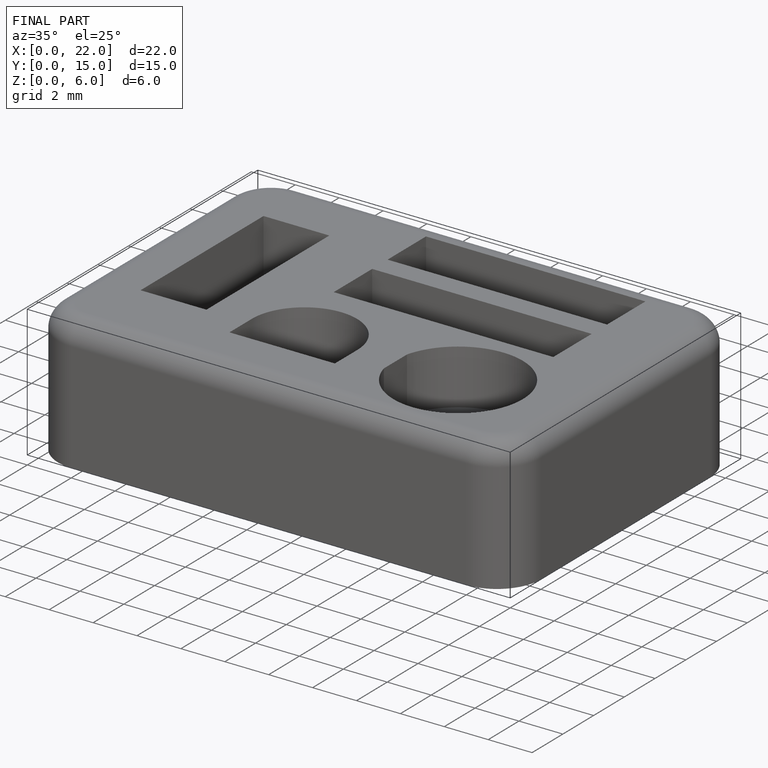
[diagram: finished part — iso view with bounding-box wireframe]
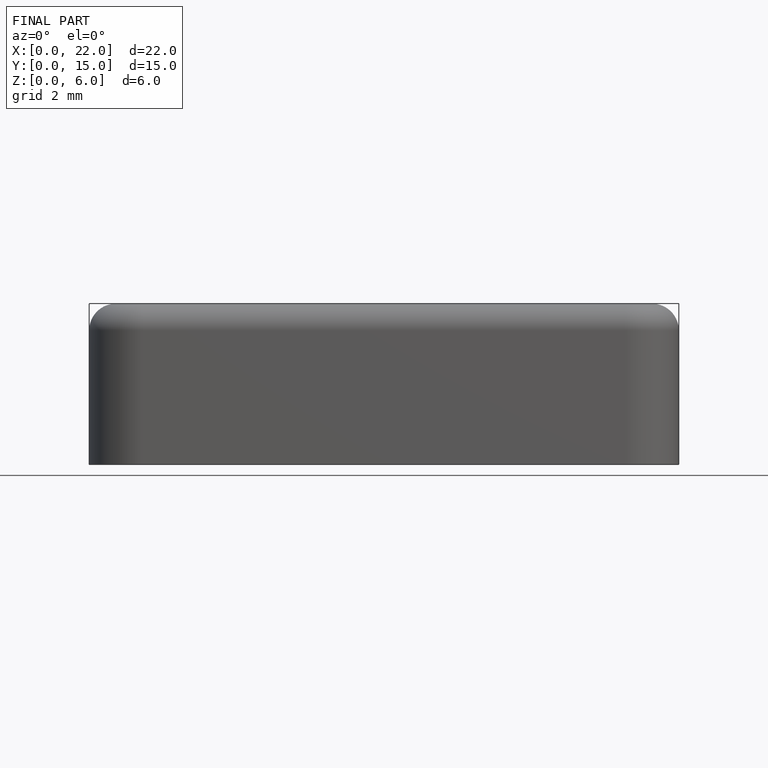
[diagram: finished part — front view with bounding-box wireframe]
